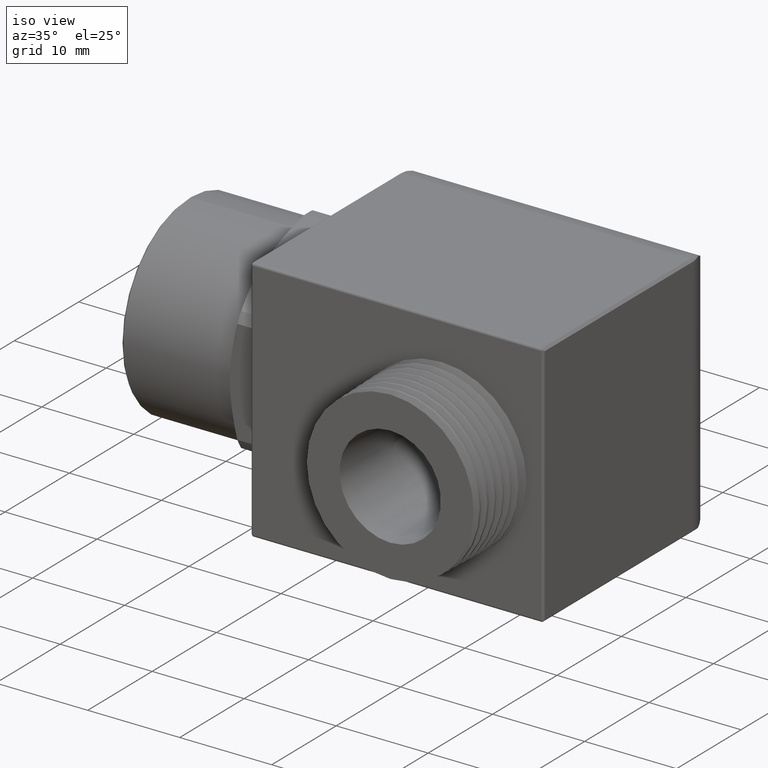
[diagram: clean part render]
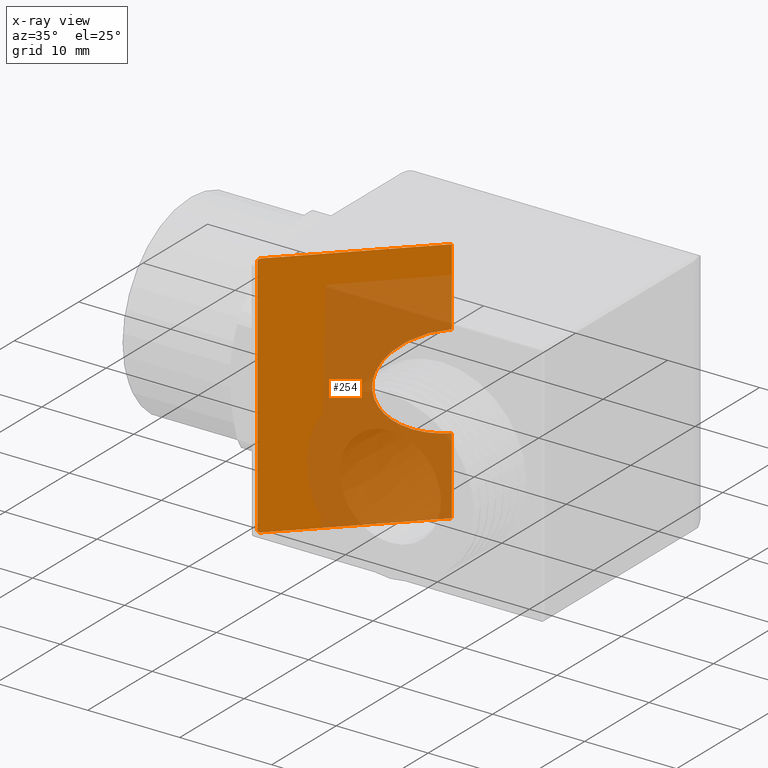
[diagram: x-ray — body ghosted, one internal face saturated and labeled with its STEP entity id]
A machine part, iso view, then the same camera in x-ray: the body is ghosted and one INTERNAL B-rep face — a face not visible from any outside direction — is saturated and labeled: STEP entity #254.
In plain terms, the highlighted planar face has unit normal (-0.7071, 0.7071, 0).
Its self-contained STEP definition (entity closure, byte-faithful):
#134 = VERTEX_POINT ( 'NONE', #1545 ) ;
#136 = EDGE_CURVE ( 'NONE', #137, #134, #1542, .T. ) ;
#137 = VERTEX_POINT ( 'NONE', #1544 ) ;
#200 = EDGE_LOOP ( 'NONE', ( #255, #258, #259, #262, #265, #241, #244, #247 ) ) ;
#241 = ORIENTED_EDGE ( 'NONE', *, *, #242, .T. ) ;
#242 = EDGE_CURVE ( 'NONE', #267, #243, #1736, .T. ) ;
#243 = VERTEX_POINT ( 'NONE', #1776 ) ;
#244 = ORIENTED_EDGE ( 'NONE', *, *, #245, .F. ) ;
#245 = EDGE_CURVE ( 'NONE', #246, #243, #1773, .T. ) ;
#246 = VERTEX_POINT ( 'NONE', #1775 ) ;
#247 = ORIENTED_EDGE ( 'NONE', *, *, #248, .T. ) ;
#248 = EDGE_CURVE ( 'NONE', #246, #257, #1774, .T. ) ;
#254 = ADVANCED_FACE ( 'NONE', ( #1759 ), #1758, .T. ) ;
#255 = ORIENTED_EDGE ( 'NONE', *, *, #256, .F. ) ;
#256 = EDGE_CURVE ( 'NONE', #137, #257, #1800, .T. ) ;
#257 = VERTEX_POINT ( 'NONE', #1796 ) ;
#258 = ORIENTED_EDGE ( 'NONE', *, *, #136, .T. ) ;
#259 = ORIENTED_EDGE ( 'NONE', *, *, #260, .F. ) ;
#260 = EDGE_CURVE ( 'NONE', #261, #134, #1795, .T. ) ;
#261 = VERTEX_POINT ( 'NONE', #1791 ) ;
#262 = ORIENTED_EDGE ( 'NONE', *, *, #263, .F. ) ;
#263 = EDGE_CURVE ( 'NONE', #264, #261, #1790, .T. ) ;
#264 = VERTEX_POINT ( 'NONE', #1786 ) ;
#265 = ORIENTED_EDGE ( 'NONE', *, *, #266, .F. ) ;
#266 = EDGE_CURVE ( 'NONE', #267, #264, #1785, .T. ) ;
#267 = VERTEX_POINT ( 'NONE', #1826 ) ;
#1538 = CARTESIAN_POINT ( 'NONE',  ( 0.1801000000000052800, 0.0000000000000000000, -0.2007500000000002300 ) ) ;
#1539 = CARTESIAN_POINT ( 'NONE',  ( -0.2213999999999948500, -0.4015000000000000800, -0.2007499999999999600 ) ) ;
#1540 = CARTESIAN_POINT ( 'NONE',  ( -0.2213999999999948200, -0.4015000000000000800, 0.2007500000000001000 ) ) ;
#1541 = CARTESIAN_POINT ( 'NONE',  ( 0.1801000000000052800, 0.0000000000000000000, 0.2007499999999997600 ) ) ;
#1542 =( BOUNDED_CURVE ( )  B_SPLINE_CURVE ( 3, ( #1541, #1540, #1539, #1538 ),
 .UNSPECIFIED., .F., .T. ) 
 B_SPLINE_CURVE_WITH_KNOTS ( ( 4, 4 ),
 ( 4.712388980384689700, 7.853981633974482800 ),
 .UNSPECIFIED. ) 
 CURVE ( )  GEOMETRIC_REPRESENTATION_ITEM ( )  RATIONAL_B_SPLINE_CURVE ( ( 1.000000000000000000, 0.3333333333333333100, 0.3333333333333333100, 1.000000000000000000 ) ) 
 REPRESENTATION_ITEM ( '' )  );
#1544 = CARTESIAN_POINT ( 'NONE',  ( 0.1801000000000052800, 0.0000000000000000000, 0.2007499999999997600 ) ) ;
#1545 = CARTESIAN_POINT ( 'NONE',  ( 0.1801000000000052800, 0.0000000000000000000, -0.2007500000000002300 ) ) ;
#1736 = LINE ( 'NONE', #1739, #1778 ) ;
#1739 = CARTESIAN_POINT ( 'NONE',  ( -0.3098999999999999500, -0.4900000000000051500, 0.5300000000000000300 ) ) ;
#1757 = AXIS2_PLACEMENT_3D ( 'NONE', #1803, #1802, #1801 ) ;
#1758 = PLANE ( 'NONE',  #1757 ) ;
#1759 = FACE_OUTER_BOUND ( 'NONE', #200, .T. ) ;
#1766 = DIRECTION ( 'NONE',  ( 0.7071067811865474600, 0.7071067811865474600, 0.0000000000000000000 ) ) ;
#1767 = VECTOR ( 'NONE', #1766, 39.37007874015748900 ) ;
#1768 = CARTESIAN_POINT ( 'NONE',  ( 0.7773833333333358700, 0.5972833333333306100, 0.5300000000000000300 ) ) ;
#1769 = CARTESIAN_POINT ( 'NONE',  ( -0.3098999999999999500, -0.4900000000000053800, 0.5200000000000000200 ) ) ;
#1770 = CARTESIAN_POINT ( 'NONE',  ( -0.3099000000000000100, -0.4900000000000054300, 0.5258578643762690200 ) ) ;
#1771 = CARTESIAN_POINT ( 'NONE',  ( -0.3057578643762690600, -0.4858578643762743700, 0.5299999999999999200 ) ) ;
#1772 = CARTESIAN_POINT ( 'NONE',  ( -0.2999000000000000000, -0.4800000000000054200, 0.5300000000000000300 ) ) ;
#1773 =( BOUNDED_CURVE ( )  B_SPLINE_CURVE ( 3, ( #1772, #1771, #1770, #1769 ),
 .UNSPECIFIED., .F., .T. ) 
 B_SPLINE_CURVE_WITH_KNOTS ( ( 4, 4 ),
 ( 4.712388980384689700, 6.283185307179586200 ),
 .UNSPECIFIED. ) 
 CURVE ( )  GEOMETRIC_REPRESENTATION_ITEM ( )  RATIONAL_B_SPLINE_CURVE ( ( 1.000000000000000000, 0.8047378541243649400, 0.8047378541243649400, 1.000000000000000000 ) ) 
 REPRESENTATION_ITEM ( '' )  );
#1774 = LINE ( 'NONE', #1768, #1767 ) ;
#1775 = CARTESIAN_POINT ( 'NONE',  ( -0.2999000000000000000, -0.4800000000000054200, 0.5300000000000000300 ) ) ;
#1776 = CARTESIAN_POINT ( 'NONE',  ( -0.3098999999999999500, -0.4900000000000053800, 0.5200000000000000200 ) ) ;
#1777 = DIRECTION ( 'NONE',  ( 0.0000000000000000000, 0.0000000000000000000, 1.000000000000000000 ) ) ;
#1778 = VECTOR ( 'NONE', #1777, 39.37007874015748100 ) ;
#1780 = CARTESIAN_POINT ( 'NONE',  ( -0.2998999999999999400, -0.4800000000000052600, -0.5300000000000000300 ) ) ;
#1781 = CARTESIAN_POINT ( 'NONE',  ( -0.3057578643762690100, -0.4858578643762743200, -0.5299999999999999200 ) ) ;
#1782 = CARTESIAN_POINT ( 'NONE',  ( -0.3098999999999999500, -0.4900000000000052100, -0.5258578643762690200 ) ) ;
#1783 = CARTESIAN_POINT ( 'NONE',  ( -0.3098999999999999500, -0.4900000000000052600, -0.5200000000000000200 ) ) ;
#1785 =( BOUNDED_CURVE ( )  B_SPLINE_CURVE ( 3, ( #1783, #1782, #1781, #1780 ),
 .UNSPECIFIED., .F., .T. ) 
 B_SPLINE_CURVE_WITH_KNOTS ( ( 4, 4 ),
 ( 3.141592653589793100, 4.712388980384689700 ),
 .UNSPECIFIED. ) 
 CURVE ( )  GEOMETRIC_REPRESENTATION_ITEM ( )  RATIONAL_B_SPLINE_CURVE ( ( 1.000000000000000000, 0.8047378541243649400, 0.8047378541243649400, 1.000000000000000000 ) ) 
 REPRESENTATION_ITEM ( '' )  );
#1786 = CARTESIAN_POINT ( 'NONE',  ( -0.2998999999999999400, -0.4800000000000052600, -0.5300000000000000300 ) ) ;
#1787 = DIRECTION ( 'NONE',  ( 0.7071067811865474600, 0.7071067811865474600, 0.0000000000000000000 ) ) ;
#1788 = VECTOR ( 'NONE', #1787, 39.37007874015748900 ) ;
#1789 = CARTESIAN_POINT ( 'NONE',  ( 0.7773833333333358700, 0.5972833333333306100, -0.5300000000000000300 ) ) ;
#1790 = LINE ( 'NONE', #1789, #1788 ) ;
#1791 = CARTESIAN_POINT ( 'NONE',  ( 0.1801000000000052800, 0.0000000000000000000, -0.5300000000000000300 ) ) ;
#1792 = DIRECTION ( 'NONE',  ( 0.0000000000000000000, 0.0000000000000000000, 1.000000000000000000 ) ) ;
#1793 = VECTOR ( 'NONE', #1792, 39.37007874015748100 ) ;
#1794 = CARTESIAN_POINT ( 'NONE',  ( 0.1801000000000052800, 0.0000000000000000000, -0.5303937007874016700 ) ) ;
#1795 = LINE ( 'NONE', #1794, #1793 ) ;
#1796 = CARTESIAN_POINT ( 'NONE',  ( 0.1801000000000052800, 0.0000000000000000000, 0.5300000000000000300 ) ) ;
#1797 = DIRECTION ( 'NONE',  ( 0.0000000000000000000, 0.0000000000000000000, 1.000000000000000000 ) ) ;
#1798 = VECTOR ( 'NONE', #1797, 39.37007874015748100 ) ;
#1799 = CARTESIAN_POINT ( 'NONE',  ( 0.1801000000000052800, 0.0000000000000000000, -0.5303937007874016700 ) ) ;
#1800 = LINE ( 'NONE', #1799, #1798 ) ;
#1801 = DIRECTION ( 'NONE',  ( -0.7071067811865474600, -0.7071067811865474600, 0.0000000000000000000 ) ) ;
#1802 = DIRECTION ( 'NONE',  ( -0.7071067811865475700, 0.7071067811865475700, 0.0000000000000000000 ) ) ;
#1803 = CARTESIAN_POINT ( 'NONE',  ( 0.1801000000000052800, 0.0000000000000000000, -0.5303937007874016700 ) ) ;
#1826 = CARTESIAN_POINT ( 'NONE',  ( -0.3098999999999999500, -0.4900000000000052600, -0.5200000000000000200 ) ) ;